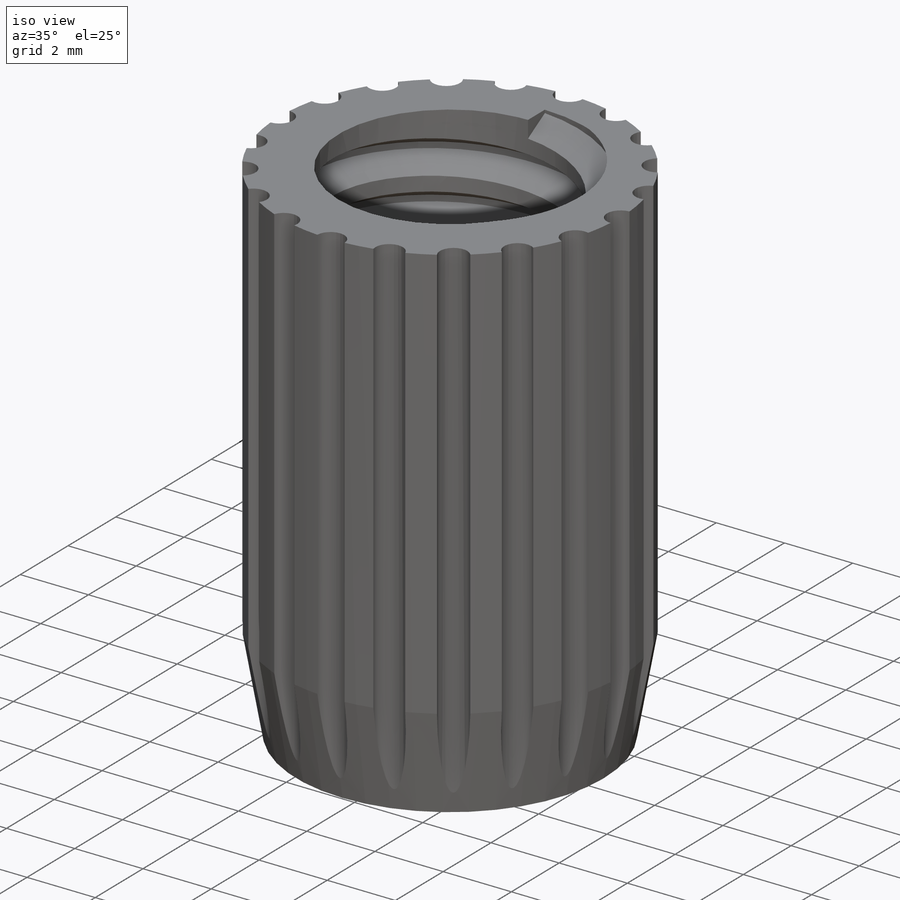
[diagram: iso view]
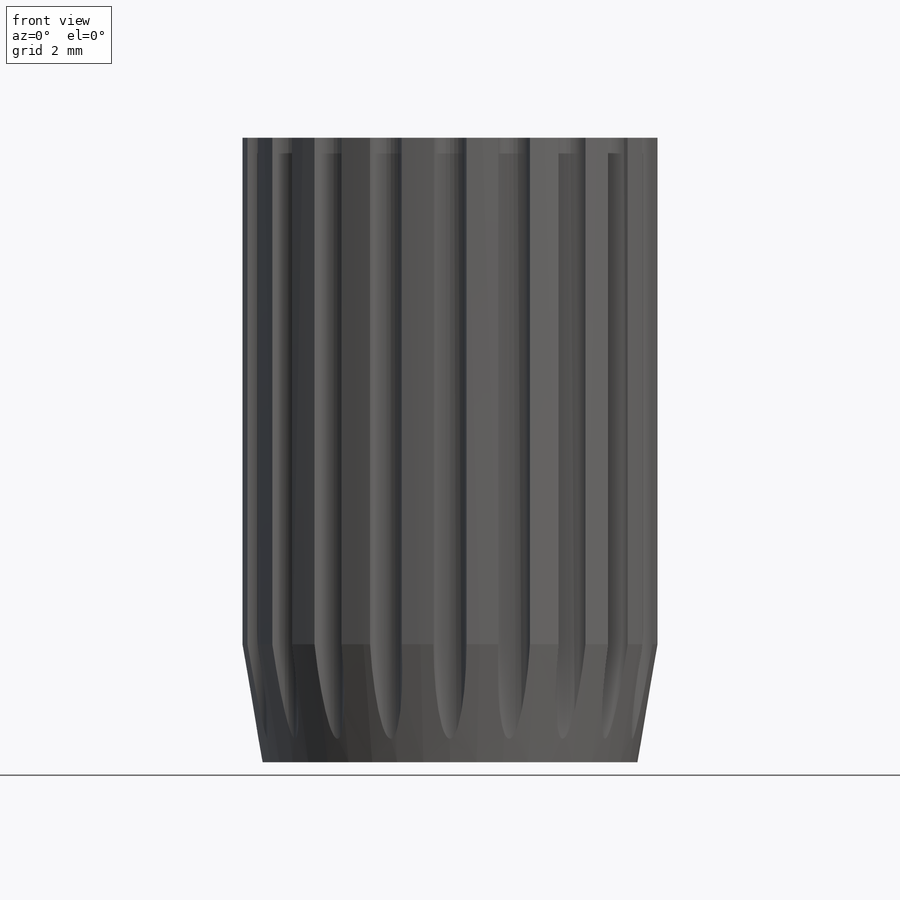
[diagram: front view]
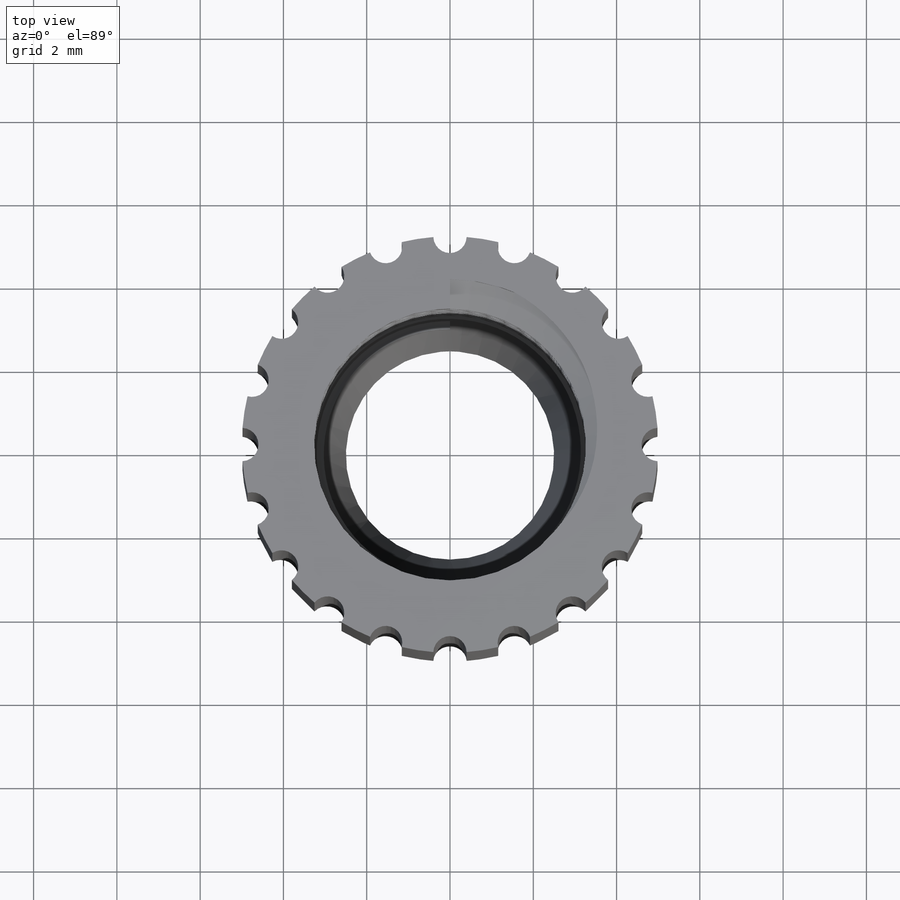
[diagram: top view]
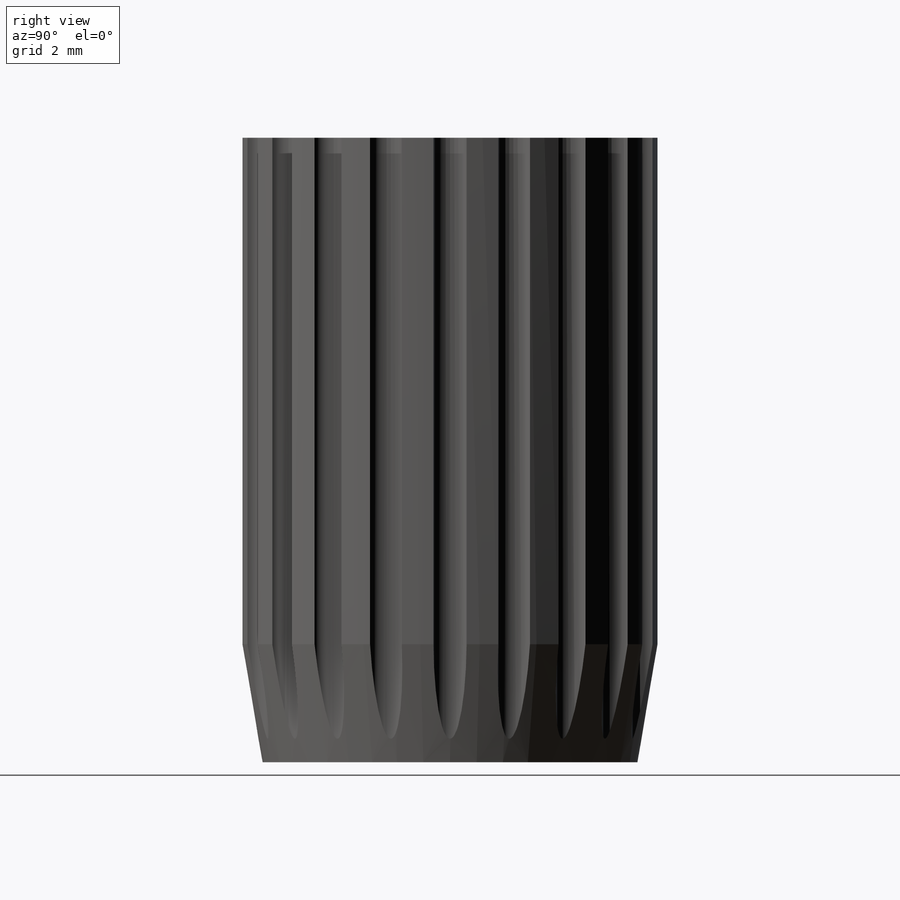
[diagram: right view]
SOLIDWORKS PART (.sldprt)
format: sldprt  version: not decoded by parser v0  size: 527,360 bytes
history: native  units: mm
features: sketch x8, material x1, extrude x1, hole x1, chamfer x1, cut_extrude x1, helix x1, sweep x1 (+13 scaffold rows collapsed)
feature tree (28):
  scaffold x13  (default folders/planes/origin — collapsed)
  material  "Material <not specified>"
  sketch  "Sketch1"  dims[D1=10.0mm]
  extrude  "Boss-Extrude1"  Depth=15mm
  hole  "5/16-18 Tapped Hole1"  Diameter=6.5278mm Depth=10mm
  sketch  "Sketch3"
  sketch  "Sketch2"  dims[hole-wizard template sketch: 50 standard entries collapsed; hole parameters above]
  sketch  "Sketch4"  dims[D1=2.7mm]
  chamfer  "Chamfer1"  Distance=0.5mm Angle=80deg
  sketch  "Sketch5"  dims[D1=0.8mm D2=20.0]
  cut_extrude  "Cut-Extrude2"  [1 undecoded]
  sketch  "Sketch6"  dims[D1=3.4585mm D2=0.125mm D3=0.125mm D4=1.0mm D5=4.0mm D6=~0.289521mm]
  sketch  "Sketch8"  dims[c1.D1=3.97mm c1.D2=~3.10261mm c1.D3=~0.352778mm c1.D4=~0.86739mm c2.D4=60.0deg c2.D5=~1.034461mm c3.D5=30.0deg c3.D6=~0.176389mm c3.D7=~0.278917mm c4.D7=30.0deg c4.D8=~0.352778mm]
  sketch  "Sketch7"  dims[D1=~3.498116mm]
  helix  "Helix/Spiral1"  Pitch=11.288889mm
  sweep  "Cut-Sweep6"
decode coverage: 11 of 14 modeling features carry decoded parameters
note: ~ marks probable driven/reference dimensions
note: 1 parameter value undecoded
note: suppression state not decoded; provenance and decode notes live in map.json
